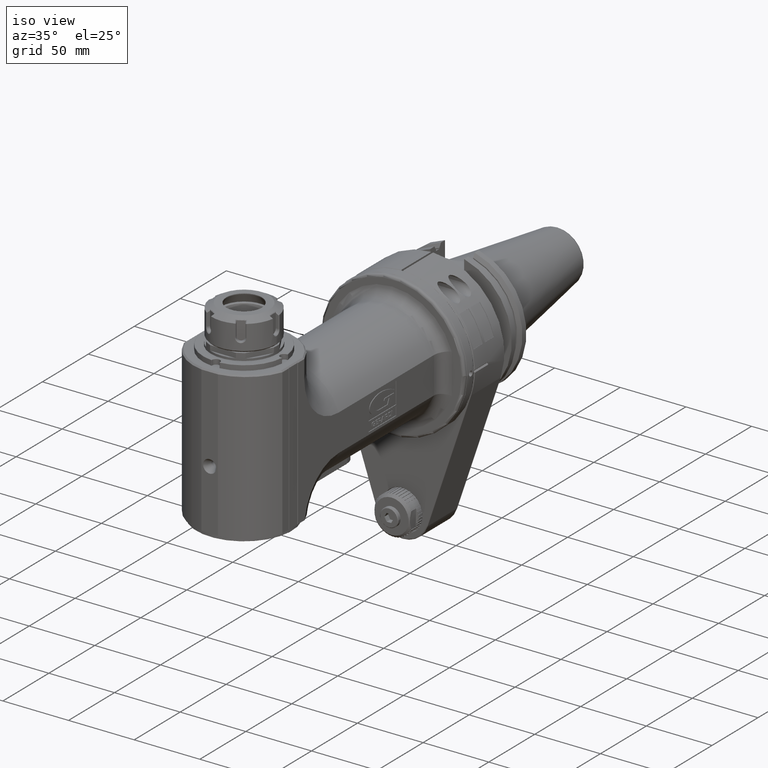
[diagram: clean part render]
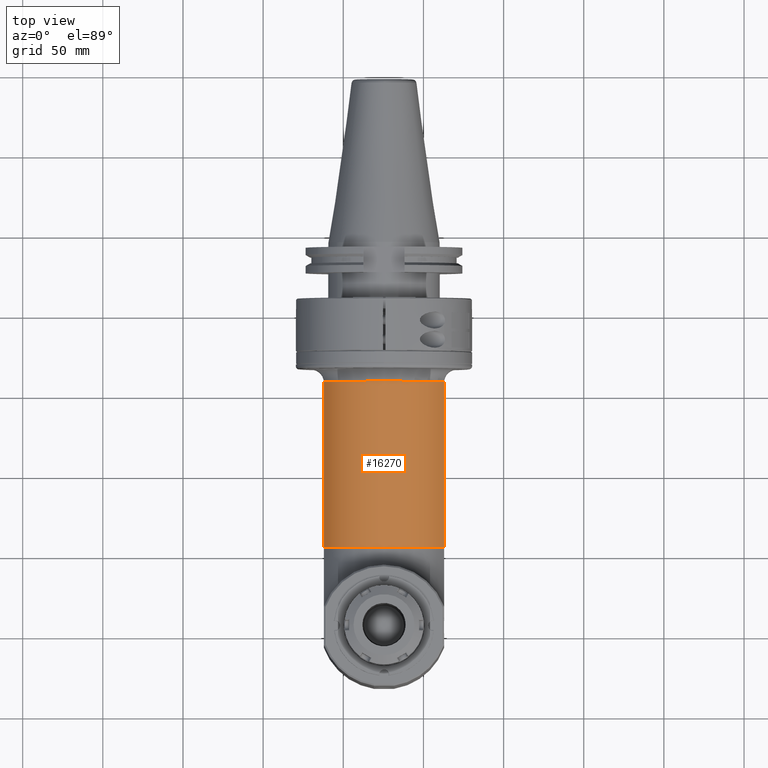
[diagram: tour spotlight — one face highlighted and labeled with its STEP entity id]
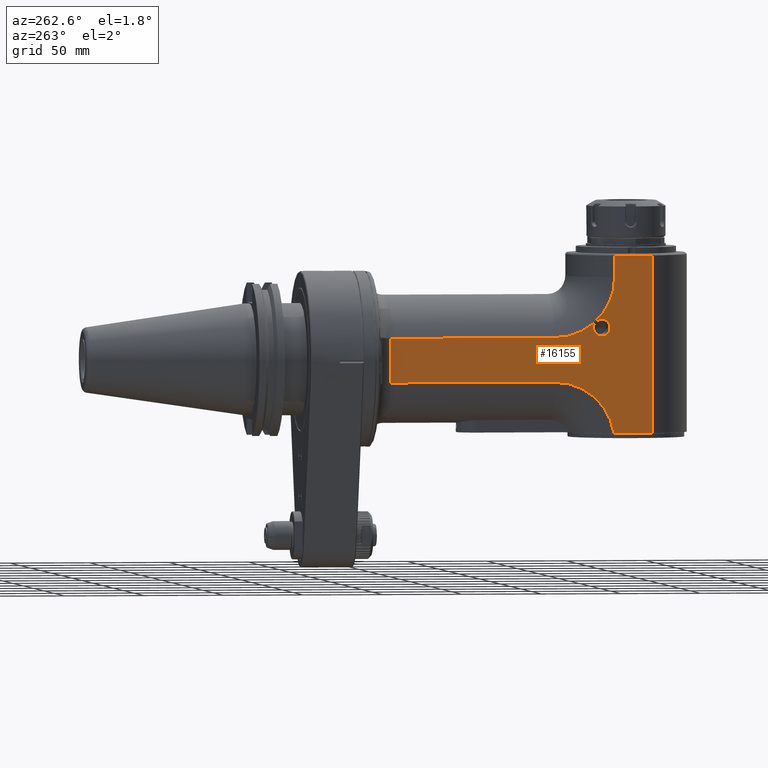
[diagram: tour spotlight — one face highlighted and labeled with its STEP entity id]
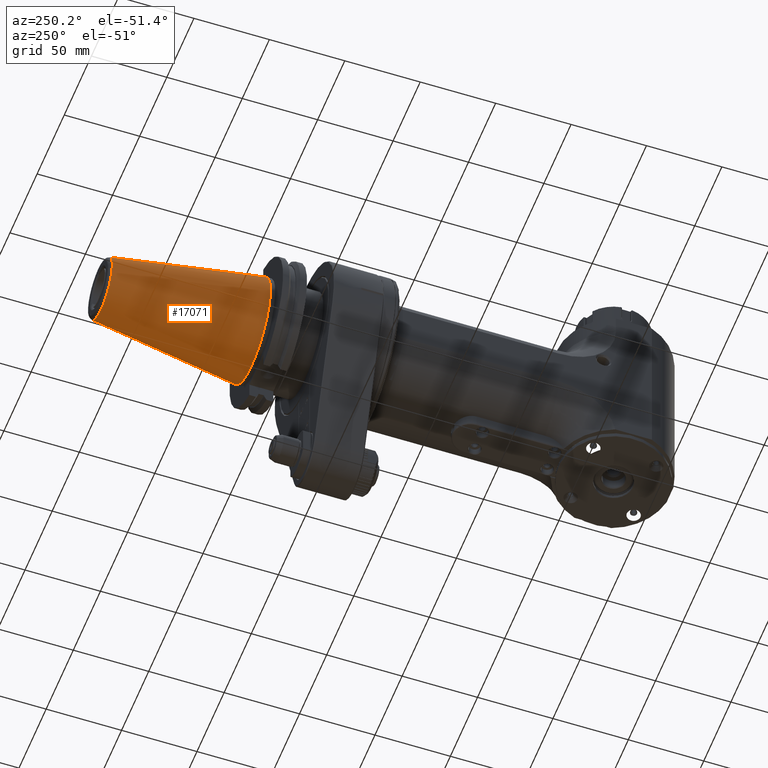
[diagram: tour spotlight — one face highlighted and labeled with its STEP entity id]
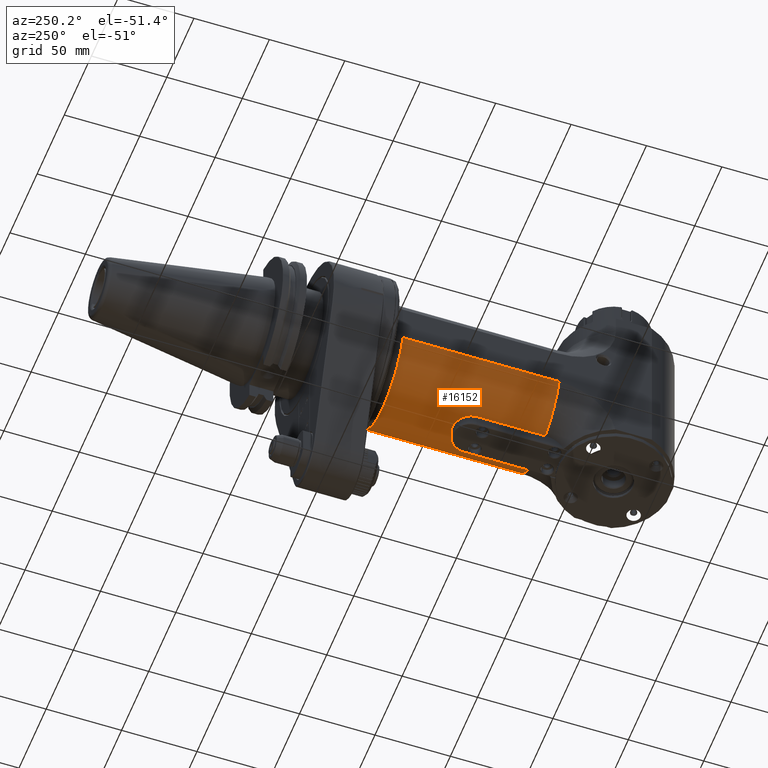
[diagram: tour spotlight — one face highlighted and labeled with its STEP entity id]
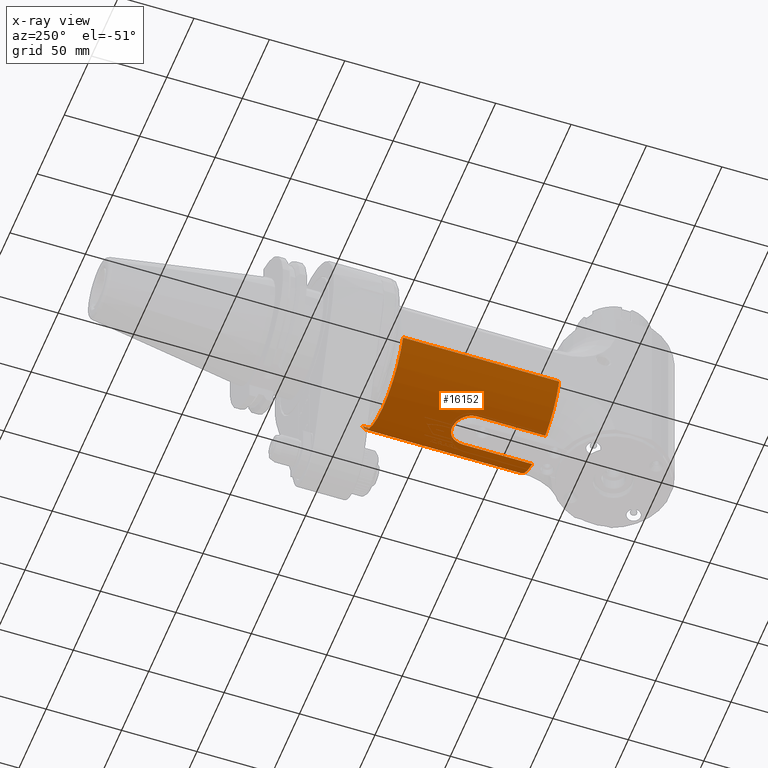
[diagram: x-ray of the same camera — body ghosted, this tour face saturated]
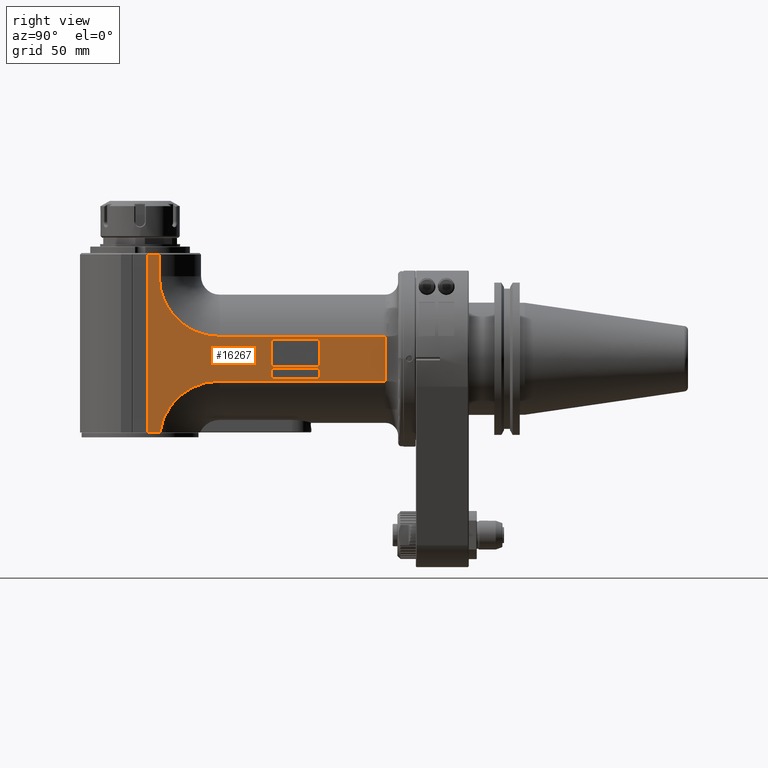
[diagram: tour spotlight — one face highlighted and labeled with its STEP entity id]
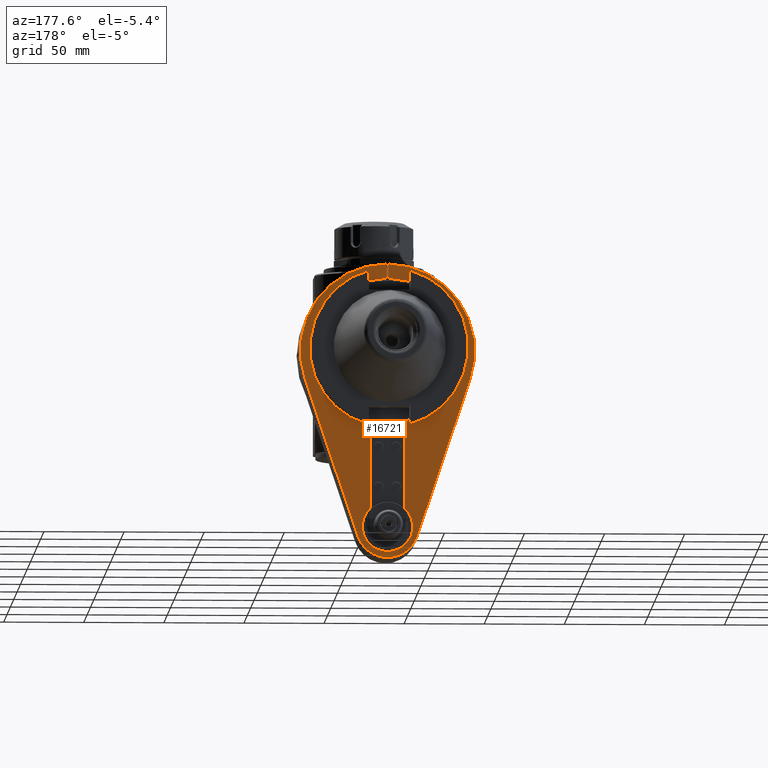
[diagram: tour spotlight — one face highlighted and labeled with its STEP entity id]
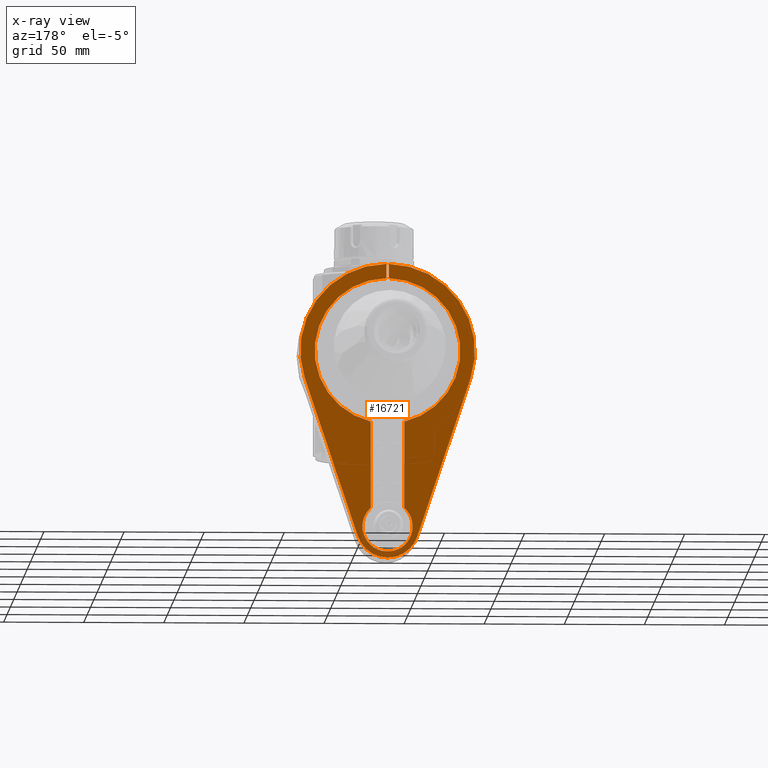
[diagram: x-ray of the same camera — body ghosted, this tour face saturated]
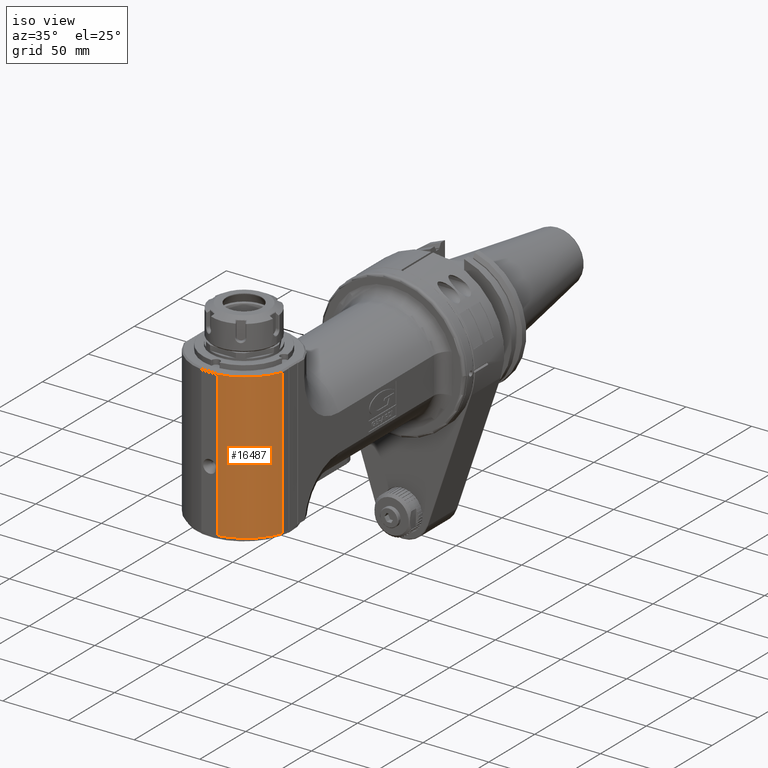
[diagram: tour spotlight — one face highlighted and labeled with its STEP entity id]
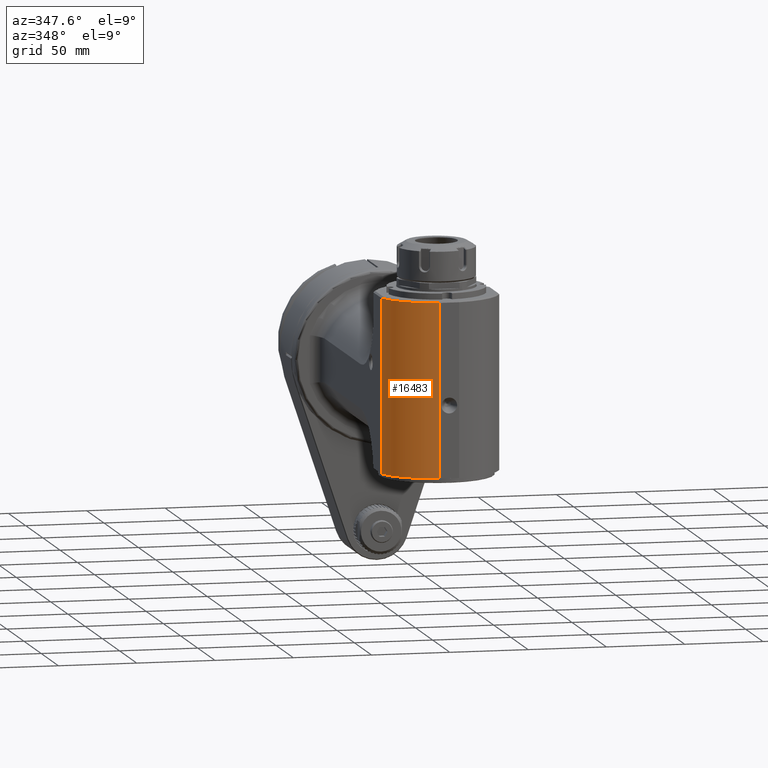
[diagram: tour spotlight — one face highlighted and labeled with its STEP entity id]
A machine part: a face-by-face anatomy tour. The part has 961 B-rep faces; the first image is the clean iso view, then the 8 largest visible faces are spotlighted one at a time (largest first), each with its STEP entity span.

Face 1 — top view, entity #16270. In plain terms, the highlighted cylindrical surface (partial cylindrical patch) has radius 40 mm, axis along (0, -1, -0).
Definition (entity closure, byte-faithful):
#1183=FACE_OUTER_BOUND('',#2171,.T.);
#2171=EDGE_LOOP('',(#11556,#11557,#11558,#11559));
#3452=CIRCLE('',#17441,40.);
#3453=CIRCLE('',#17443,40.);
#4067=LINE('',#23753,#5439);
#4197=LINE('',#24727,#5569);
#5439=VECTOR('',#18915,103.5);
#5569=VECTOR('',#19561,103.5);
#6817=VERTEX_POINT('',#23750);
#6818=VERTEX_POINT('',#23752);
#7023=VERTEX_POINT('',#24724);
#7024=VERTEX_POINT('',#24726);
#8456=EDGE_CURVE('',#6818,#6817,#4067,.T.);
#8758=EDGE_CURVE('',#7023,#7024,#4197,.T.);
#8770=EDGE_CURVE('',#7024,#6817,#3452,.T.);
#8771=EDGE_CURVE('',#7023,#6818,#3453,.T.);
#11556=ORIENTED_EDGE('',*,*,#8758,.F.);
#11557=ORIENTED_EDGE('',*,*,#8771,.T.);
#11558=ORIENTED_EDGE('',*,*,#8456,.T.);
#11559=ORIENTED_EDGE('',*,*,#8770,.F.);
#15981=CYLINDRICAL_SURFACE('',#17442,40.);
#16270=ADVANCED_FACE('',(#1183),#15981,.T.);
#17441=AXIS2_PLACEMENT_3D('',#24750,#19579,#19580);
#17442=AXIS2_PLACEMENT_3D('',#24751,#19581,#19582);
#17443=AXIS2_PLACEMENT_3D('',#24752,#19583,#19584);
#18915=DIRECTION('',(0.,-1.,0.));
#19561=DIRECTION('',(0.,-1.,0.));
#19579=DIRECTION('center_axis',(0.,-1.,0.));
#19580=DIRECTION('ref_axis',(0.937499999999992,0.,0.347985272676897));
#19581=DIRECTION('center_axis',(0.,-1.,0.));
#19582=DIRECTION('ref_axis',(-1.,0.,0.));
#19583=DIRECTION('center_axis',(0.,-1.,0.));
#19584=DIRECTION('ref_axis',(0.937499999999992,0.,0.347985272676897));
#23750=CARTESIAN_POINT('',(-37.5,49.5,13.91941090708));
#23752=CARTESIAN_POINT('',(-37.5,153.,13.91941090708));
#23753=CARTESIAN_POINT('',(-37.5,153.,13.91941090708));
#24724=CARTESIAN_POINT('',(37.5,153.,13.91941090708));
#24726=CARTESIAN_POINT('',(37.5,49.5,13.91941090708));
#24727=CARTESIAN_POINT('',(37.5,153.,13.91941090708));
#24750=CARTESIAN_POINT('Origin',(0.,49.5,0.));
#24751=CARTESIAN_POINT('Origin',(0.,206.85,0.));
#24752=CARTESIAN_POINT('Origin',(0.,153.,0.));

Face 2 — auxiliary view, entity #16155. In plain terms, the highlighted planar face has unit normal (1, 0, -0).
Definition (entity closure, byte-faithful):
#452=FACE_BOUND('',#2030,.T.);
#571=PLANE('',#17177);
#1068=FACE_OUTER_BOUND('',#2029,.T.);
#2029=EDGE_LOOP('',(#10961,#10962,#10963,#10964,#10965,#10966,#10967,#10968,
#10969));
#2030=EDGE_LOOP('',(#10970));
#3311=CIRCLE('',#17176,37.58058909292);
#3312=CIRCLE('',#17178,37.58058909292);
#3313=CIRCLE('',#17179,5.250060322121);
#4058=LINE('',#23690,#5430);
#4065=LINE('',#23747,#5437);
#4066=LINE('',#23749,#5438);
#4067=LINE('',#23753,#5439);
#4068=LINE('',#23754,#5440);
#4069=LINE('',#23756,#5441);
#4070=LINE('',#23757,#5442);
#5430=VECTOR('',#18890,103.5);
#5437=VECTOR('',#18911,10.);
#5438=VECTOR('',#18912,13.4999980109401);
#5439=VECTOR('',#18915,103.5);
#5440=VECTOR('',#18916,27.83882181415);
#5441=VECTOR('',#18917,24.24346873245);
#5442=VECTOR('',#18918,10.);
#6803=VERTEX_POINT('',#23687);
#6804=VERTEX_POINT('',#23689);
#6813=VERTEX_POINT('',#23728);
#6814=VERTEX_POINT('',#23745);
#6815=VERTEX_POINT('',#23746);
#6816=VERTEX_POINT('',#23748);
#6817=VERTEX_POINT('',#23750);
#6818=VERTEX_POINT('',#23752);
#6819=VERTEX_POINT('',#23755);
#6820=VERTEX_POINT('',#23758);
#8440=EDGE_CURVE('',#6804,#6803,#4058,.T.);
#8452=EDGE_CURVE('',#6803,#6813,#3311,.T.);
#8453=EDGE_CURVE('',#6814,#6815,#4065,.T.);
#8454=EDGE_CURVE('',#6816,#6814,#4066,.T.);
#8455=EDGE_CURVE('',#6817,#6816,#3312,.T.);
#8456=EDGE_CURVE('',#6818,#6817,#4067,.T.);
#8457=EDGE_CURVE('',#6804,#6818,#4068,.T.);
#8458=EDGE_CURVE('',#6813,#6819,#4069,.T.);
#8459=EDGE_CURVE('',#6815,#6819,#4070,.T.);
#8460=EDGE_CURVE('',#6820,#6820,#3313,.T.);
#10961=ORIENTED_EDGE('',*,*,#8453,.F.);
#10962=ORIENTED_EDGE('',*,*,#8454,.F.);
#10963=ORIENTED_EDGE('',*,*,#8455,.F.);
#10964=ORIENTED_EDGE('',*,*,#8456,.F.);
#10965=ORIENTED_EDGE('',*,*,#8457,.F.);
#10966=ORIENTED_EDGE('',*,*,#8440,.T.);
#10967=ORIENTED_EDGE('',*,*,#8452,.T.);
#10968=ORIENTED_EDGE('',*,*,#8458,.T.);
#10969=ORIENTED_EDGE('',*,*,#8459,.F.);
#10970=ORIENTED_EDGE('',*,*,#8460,.T.);
#16155=ADVANCED_FACE('',(#1068,#452),#571,.F.);
#17176=AXIS2_PLACEMENT_3D('',#23743,#18907,#18908);
#17177=AXIS2_PLACEMENT_3D('',#23744,#18909,#18910);
#17178=AXIS2_PLACEMENT_3D('',#23751,#18913,#18914);
#17179=AXIS2_PLACEMENT_3D('',#23759,#18919,#18920);
#18890=DIRECTION('',(0.,-1.,0.));
#18907=DIRECTION('center_axis',(1.,0.,0.));
#18908=DIRECTION('ref_axis',(0.,-1.210059133884E-14,1.));
#18909=DIRECTION('center_axis',(1.,0.,0.));
#18910=DIRECTION('ref_axis',(0.,1.,0.));
#18911=DIRECTION('',(0.,-1.,0.));
#18912=DIRECTION('',(1.22590523118099E-7,-4.54893183119996E-8,0.999999999999991));
#18913=DIRECTION('center_axis',(-1.,0.,0.));
#18914=DIRECTION('ref_axis',(0.,-2.609190007438E-14,-1.));
#18915=DIRECTION('',(0.,-1.,0.));
#18916=DIRECTION('',(0.,0.,1.));
#18917=DIRECTION('',(0.,-1.,0.));
#18918=DIRECTION('',(0.,0.,-1.));
#18919=DIRECTION('center_axis',(1.,0.,0.));
#18920=DIRECTION('ref_axis',(0.,1.,-1.353399184322E-14));
#23687=CARTESIAN_POINT('',(-37.5,49.5,-13.91941090708));
#23689=CARTESIAN_POINT('',(-37.5,153.,-13.91941090708));
#23690=CARTESIAN_POINT('',(-37.5,153.,-13.91941090708));
#23728=CARTESIAN_POINT('',(-37.5,12.32405782537,-46.));
#23743=CARTESIAN_POINT('Origin',(-37.5,49.5,-51.5));
#23744=CARTESIAN_POINT('Origin',(-37.5,-18.013,-67.1));
#23745=CARTESIAN_POINT('',(-37.5000031535924,11.9193903969521,64.9999925954276));
#23746=CARTESIAN_POINT('',(-37.5000115855401,-11.919346400708,64.9999768288556));
#23747=CARTESIAN_POINT('',(-37.5,-9.00649999999996,65.));
#23748=CARTESIAN_POINT('',(-37.5,11.91941090708,51.5));
#23749=CARTESIAN_POINT('',(-37.5,11.91941090708,51.5));
#23750=CARTESIAN_POINT('',(-37.5,49.5,13.91941090708));
#23751=CARTESIAN_POINT('Origin',(-37.5,49.5,51.5));
#23752=CARTESIAN_POINT('',(-37.5,153.,13.91941090708));
#23753=CARTESIAN_POINT('',(-37.5,153.,13.91941090708));
#23754=CARTESIAN_POINT('',(-37.5,153.,-13.91941090708));
#23755=CARTESIAN_POINT('',(-37.5,-11.91941090708,-46.));
#23756=CARTESIAN_POINT('',(-37.5,12.32405782537,-46.));
#23757=CARTESIAN_POINT('',(-37.5,-11.9194109070751,66.));
#23758=CARTESIAN_POINT('',(-37.4999999999983,20.,25.2500603221227));
#23759=CARTESIAN_POINT('Origin',(-37.5,20.,20.));

Face 3 — auxiliary view, entity #17071. In plain terms, the highlighted conical surface has half-angle 8.3 deg.
Definition (entity closure, byte-faithful):
#355=CONICAL_SURFACE('',#18798,27.65552420652,0.144862327915529);
#1984=FACE_OUTER_BOUND('',#3044,.T.);
#3044=EDGE_LOOP('',(#15742,#15743,#15744,#15745,#15746));
#4015=CIRCLE('',#18795,20.38604841304);
#4017=CIRCLE('',#18797,20.38604841304);
#4018=CIRCLE('',#18799,34.925);
#5378=LINE('',#32304,#6750);
#6750=VECTOR('',#23468,27.65552420652);
#8366=VERTEX_POINT('',#32296);
#8367=VERTEX_POINT('',#32297);
#8368=VERTEX_POINT('',#32302);
#10836=EDGE_CURVE('',#8366,#8367,#4015,.T.);
#10838=EDGE_CURVE('',#8367,#8366,#4017,.T.);
#10839=EDGE_CURVE('',#8368,#8368,#4018,.T.);
#10840=EDGE_CURVE('',#8368,#8367,#5378,.T.);
#15742=ORIENTED_EDGE('',*,*,#10839,.F.);
#15743=ORIENTED_EDGE('',*,*,#10840,.T.);
#15744=ORIENTED_EDGE('',*,*,#10838,.T.);
#15745=ORIENTED_EDGE('',*,*,#10836,.T.);
#15746=ORIENTED_EDGE('',*,*,#10840,.F.);
#17071=ADVANCED_FACE('',(#1984),#355,.T.);
#18795=AXIS2_PLACEMENT_3D('',#32298,#23458,#23459);
#18797=AXIS2_PLACEMENT_3D('',#32300,#23462,#23463);
#18798=AXIS2_PLACEMENT_3D('',#32301,#23464,#23465);
#18799=AXIS2_PLACEMENT_3D('',#32303,#23466,#23467);
#23458=DIRECTION('center_axis',(0.,-1.,0.));
#23459=DIRECTION('ref_axis',(0.00108059556212205,0.,0.999999416156445));
#23462=DIRECTION('center_axis',(0.,-1.,0.));
#23463=DIRECTION('ref_axis',(0.00108059556212205,0.,0.999999416156445));
#23464=DIRECTION('center_axis',(0.,-1.,0.));
#23465=DIRECTION('ref_axis',(0.,0.,1.));
#23466=DIRECTION('center_axis',(0.,-1.,0.));
#23467=DIRECTION('ref_axis',(0.,0.,-1.));
#23468=DIRECTION('',(-1.76785359492914E-17,0.989525789068969,0.144356201000973));
#32296=CARTESIAN_POINT('',(0.0220290734443338,167.6608905025,20.386036510777));
#32297=CARTESIAN_POINT('',(2.49657089362968E-15,167.660890502501,-20.3860484130436));
#32298=CARTESIAN_POINT('Origin',(0.,167.6608905025,-1.224644799147E-14));
#32300=CARTESIAN_POINT('Origin',(0.,167.6608905025,-1.224644799147E-14));
#32301=CARTESIAN_POINT('Origin',(0.,117.83044525125,-1.224644799147E-14));
#32302=CARTESIAN_POINT('',(0.,68.,-34.925));
#32303=CARTESIAN_POINT('Origin',(0.,68.,-1.224644799147E-14));
#32304=CARTESIAN_POINT('',(3.38682491982569E-15,117.83044525125,-27.65552420652));

Face 4 — auxiliary view, entity #16152. An x-ray twin of the same camera follows (body ghosted, this face saturated) — the face is partly hidden behind the body. In plain terms, the highlighted cylindrical surface (partial cylindrical patch) has radius 40 mm, axis along (0, -1, -0).
Definition (entity closure, byte-faithful):
#1065=FACE_OUTER_BOUND('',#2026,.T.);
#2026=EDGE_LOOP('',(#10943,#10944,#10945,#10946,#10947,#10948,#10949,#10950));
#3092=B_SPLINE_CURVE_WITH_KNOTS('',3,(#23699,#23700,#23701,#23702,#23703,
#23704,#23705,#23706,#23707,#23708,#23709,#23710,#23711,#23712,#23713,#23714,
#23715,#23716),.UNSPECIFIED.,.F.,.F.,(4,2,2,2,2,2,2,2,4),(-3.64051929255001,
-3.18538658776291,-2.73025388297581,-2.27525676462541,-1.820259646275,-1.3652625279246,
-0.9102654095742,-0.4551327047871,0.),.UNSPECIFIED.);
#3307=CIRCLE('',#17170,40.);
#3308=CIRCLE('',#17171,40.);
#3309=CIRCLE('',#17172,40.);
#4057=LINE('',#23686,#5429);
#4058=LINE('',#23690,#5430);
#4059=LINE('',#23694,#5431);
#4060=LINE('',#23698,#5432);
#5429=VECTOR('',#18887,45.5);
#5430=VECTOR('',#18890,103.5);
#5431=VECTOR('',#18893,103.5);
#5432=VECTOR('',#18896,45.5);
#6801=VERTEX_POINT('',#23684);
#6802=VERTEX_POINT('',#23685);
#6803=VERTEX_POINT('',#23687);
#6804=VERTEX_POINT('',#23689);
#6805=VERTEX_POINT('',#23691);
#6806=VERTEX_POINT('',#23693);
#6807=VERTEX_POINT('',#23695);
#6808=VERTEX_POINT('',#23697);
#8438=EDGE_CURVE('',#6801,#6802,#4057,.T.);
#8439=EDGE_CURVE('',#6803,#6802,#3307,.T.);
#8440=EDGE_CURVE('',#6804,#6803,#4058,.T.);
#8441=EDGE_CURVE('',#6804,#6805,#3308,.T.);
#8442=EDGE_CURVE('',#6805,#6806,#4059,.T.);
#8443=EDGE_CURVE('',#6807,#6806,#3309,.T.);
#8444=EDGE_CURVE('',#6808,#6807,#4060,.T.);
#8445=EDGE_CURVE('',#6808,#6801,#3092,.T.);
#10943=ORIENTED_EDGE('',*,*,#8438,.T.);
#10944=ORIENTED_EDGE('',*,*,#8439,.F.);
#10945=ORIENTED_EDGE('',*,*,#8440,.F.);
#10946=ORIENTED_EDGE('',*,*,#8441,.T.);
#10947=ORIENTED_EDGE('',*,*,#8442,.T.);
#10948=ORIENTED_EDGE('',*,*,#8443,.F.);
#10949=ORIENTED_EDGE('',*,*,#8444,.F.);
#10950=ORIENTED_EDGE('',*,*,#8445,.T.);
#15946=CYLINDRICAL_SURFACE('',#17169,40.);
#16152=ADVANCED_FACE('',(#1065),#15946,.T.);
#17169=AXIS2_PLACEMENT_3D('',#23683,#18885,#18886);
#17170=AXIS2_PLACEMENT_3D('',#23688,#18888,#18889);
#17171=AXIS2_PLACEMENT_3D('',#23692,#18891,#18892);
#17172=AXIS2_PLACEMENT_3D('',#23696,#18894,#18895);
#18885=DIRECTION('center_axis',(0.,-1.,0.));
#18886=DIRECTION('ref_axis',(-1.,0.,0.));
#18887=DIRECTION('',(0.,-1.,0.));
#18888=DIRECTION('center_axis',(0.,-1.,0.));
#18889=DIRECTION('ref_axis',(-0.937499999999992,0.,-0.347985272676897));
#18890=DIRECTION('',(0.,-1.,0.));
#18891=DIRECTION('center_axis',(0.,-1.,0.));
#18892=DIRECTION('ref_axis',(-0.937499999999992,0.,-0.347985272676897));
#18893=DIRECTION('',(0.,-1.,0.));
#18894=DIRECTION('center_axis',(0.,-1.,0.));
#18895=DIRECTION('ref_axis',(0.300000000000013,0.,-0.953939201416942));
#18896=DIRECTION('',(0.,-1.,0.));
#23683=CARTESIAN_POINT('Origin',(0.,206.85,0.));
#23684=CARTESIAN_POINT('',(-12.,95.,-38.15756805668));
#23685=CARTESIAN_POINT('',(-12.,49.5,-38.15756805668));
#23686=CARTESIAN_POINT('',(-12.,95.,-38.15756805668));
#23687=CARTESIAN_POINT('',(-37.5,49.5,-13.91941090708));
#23688=CARTESIAN_POINT('Origin',(0.,49.5,0.));
#23689=CARTESIAN_POINT('',(-37.5,153.,-13.91941090708));
#23690=CARTESIAN_POINT('',(-37.5,153.,-13.91941090708));
#23691=CARTESIAN_POINT('',(37.5,153.,-13.91941090708));
#23692=CARTESIAN_POINT('Origin',(0.,153.,0.));
#23693=CARTESIAN_POINT('',(37.5,49.5,-13.91941090708));
#23694=CARTESIAN_POINT('',(37.5,153.,-13.91941090708));
#23695=CARTESIAN_POINT('',(12.,49.5,-38.15756805668));
#23696=CARTESIAN_POINT('Origin',(0.,49.5,0.));
#23697=CARTESIAN_POINT('',(12.,95.,-38.15756805668));
#23698=CARTESIAN_POINT('',(12.,95.,-38.15756805668));
#23699=CARTESIAN_POINT('Ctrl Pts',(12.,95.,-38.1575680566778));
#23700=CARTESIAN_POINT('Ctrl Pts',(12.,96.517109015957,-38.1575680566778));
#23701=CARTESIAN_POINT('Ctrl Pts',(11.6948836643969,98.1284299417129,-38.2575175622995));
#23702=CARTESIAN_POINT('Ctrl Pts',(10.4674669046306,101.081902150865,-38.6113982441283));
#23703=CARTESIAN_POINT('Ctrl Pts',(9.5456212504585,102.424941498019,-38.8594700691606));
#23704=CARTESIAN_POINT('Ctrl Pts',(7.42525737886832,104.545305369609,-39.3197425045993));
#23705=CARTESIAN_POINT('Ctrl Pts',(6.08208967602489,105.467395628132,-39.5628477996032));
#23706=CARTESIAN_POINT('Ctrl Pts',(3.12815086992751,106.694992986043,-39.9052053355133));
#23707=CARTESIAN_POINT('Ctrl Pts',(1.51665706116801,107.,-40.));
#23708=CARTESIAN_POINT('Ctrl Pts',(-1.51665706116801,107.,-40.));
#23709=CARTESIAN_POINT('Ctrl Pts',(-3.12815086992754,106.694992986043,-39.9052053355133));
#23710=CARTESIAN_POINT('Ctrl Pts',(-6.08208967602491,105.467395628132,-39.5628477996032));
#23711=CARTESIAN_POINT('Ctrl Pts',(-7.42525737886832,104.545305369609,-39.3197425045993));
#23712=CARTESIAN_POINT('Ctrl Pts',(-9.5456212504585,102.424941498019,-38.8594700691606));
#23713=CARTESIAN_POINT('Ctrl Pts',(-10.4674669046306,101.081902150865,-38.6113982441283));
#23714=CARTESIAN_POINT('Ctrl Pts',(-11.6948836643969,98.1284299417129,-38.2575175622995));
#23715=CARTESIAN_POINT('Ctrl Pts',(-12.,96.517109015957,-38.1575680566778));
#23716=CARTESIAN_POINT('Ctrl Pts',(-12.,95.,-38.1575680566778));

Face 5 — right view, entity #16267. In plain terms, the highlighted planar face has unit normal (1, 0, -0).
Definition (entity closure, byte-faithful):
#477=FACE_BOUND('',#2167,.T.);
#478=FACE_BOUND('',#2168,.T.);
#603=PLANE('',#17436);
#1180=FACE_OUTER_BOUND('',#2166,.T.);
#2166=EDGE_LOOP('',(#11531,#11532,#11533,#11534,#11535,#11536,#11537,#11538,
#11539));
#2167=EDGE_LOOP('',(#11540,#11541,#11542,#11543));
#2168=EDGE_LOOP('',(#11544,#11545,#11546,#11547));
#3449=CIRCLE('',#17435,37.58058909292);
#3450=CIRCLE('',#17437,37.58058909292);
#4059=LINE('',#23694,#5431);
#4083=LINE('',#23822,#5455);
#4090=LINE('',#23843,#5462);
#4093=LINE('',#23868,#5465);
#4196=LINE('',#24725,#5568);
#4197=LINE('',#24727,#5569);
#4198=LINE('',#24730,#5570);
#4199=LINE('',#24733,#5571);
#4200=LINE('',#24735,#5572);
#4201=LINE('',#24737,#5573);
#4202=LINE('',#24738,#5574);
#4203=LINE('',#24741,#5575);
#4204=LINE('',#24743,#5576);
#4205=LINE('',#24745,#5577);
#4206=LINE('',#24746,#5578);
#5431=VECTOR('',#18893,103.5);
#5455=VECTOR('',#18965,10.);
#5462=VECTOR('',#18974,111.);
#5465=VECTOR('',#18983,7.324057825372);
#5568=VECTOR('',#19560,27.83882181415);
#5569=VECTOR('',#19561,103.5);
#5570=VECTOR('',#19564,13.4999981228601);
#5571=VECTOR('',#19565,16.51976851128);
#5572=VECTOR('',#19566,30.01663922375);
#5573=VECTOR('',#19567,16.51976851128);
#5574=VECTOR('',#19568,30.01663922375);
#5575=VECTOR('',#19569,6.349203301807);
#5576=VECTOR('',#19570,30.04358740776);
#5577=VECTOR('',#19571,6.349203301807);
#5578=VECTOR('',#19572,30.04358740776);
#6805=VERTEX_POINT('',#23691);
#6806=VERTEX_POINT('',#23693);
#6824=VERTEX_POINT('',#23773);
#6844=VERTEX_POINT('',#23819);
#6851=VERTEX_POINT('',#23840);
#6857=VERTEX_POINT('',#23853);
#7023=VERTEX_POINT('',#24724);
#7024=VERTEX_POINT('',#24726);
#7025=VERTEX_POINT('',#24728);
#7026=VERTEX_POINT('',#24731);
#7027=VERTEX_POINT('',#24732);
#7028=VERTEX_POINT('',#24734);
#7029=VERTEX_POINT('',#24736);
#7030=VERTEX_POINT('',#24739);
#7031=VERTEX_POINT('',#24740);
#7032=VERTEX_POINT('',#24742);
#7033=VERTEX_POINT('',#24744);
#8442=EDGE_CURVE('',#6805,#6806,#4059,.T.);
#8488=EDGE_CURVE('',#6844,#6824,#4083,.T.);
#8496=EDGE_CURVE('',#6851,#6844,#4090,.T.);
#8502=EDGE_CURVE('',#6857,#6851,#4093,.T.);
#8756=EDGE_CURVE('',#6806,#6857,#3449,.T.);
#8757=EDGE_CURVE('',#6805,#7023,#4196,.T.);
#8758=EDGE_CURVE('',#7023,#7024,#4197,.T.);
#8759=EDGE_CURVE('',#7024,#7025,#3450,.T.);
#8760=EDGE_CURVE('',#7025,#6824,#4198,.T.);
#8761=EDGE_CURVE('',#7026,#7027,#4199,.T.);
#8762=EDGE_CURVE('',#7028,#7026,#4200,.T.);
#8763=EDGE_CURVE('',#7029,#7028,#4201,.T.);
#8764=EDGE_CURVE('',#7027,#7029,#4202,.T.);
#8765=EDGE_CURVE('',#7030,#7031,#4203,.T.);
#8766=EDGE_CURVE('',#7032,#7030,#4204,.T.);
#8767=EDGE_CURVE('',#7033,#7032,#4205,.T.);
#8768=EDGE_CURVE('',#7031,#7033,#4206,.T.);
#11531=ORIENTED_EDGE('',*,*,#8496,.F.);
#11532=ORIENTED_EDGE('',*,*,#8502,.F.);
#11533=ORIENTED_EDGE('',*,*,#8756,.F.);
#11534=ORIENTED_EDGE('',*,*,#8442,.F.);
#11535=ORIENTED_EDGE('',*,*,#8757,.T.);
#11536=ORIENTED_EDGE('',*,*,#8758,.T.);
#11537=ORIENTED_EDGE('',*,*,#8759,.T.);
#11538=ORIENTED_EDGE('',*,*,#8760,.T.);
#11539=ORIENTED_EDGE('',*,*,#8488,.F.);
#11540=ORIENTED_EDGE('',*,*,#8761,.F.);
#11541=ORIENTED_EDGE('',*,*,#8762,.F.);
#11542=ORIENTED_EDGE('',*,*,#8763,.F.);
#11543=ORIENTED_EDGE('',*,*,#8764,.F.);
#11544=ORIENTED_EDGE('',*,*,#8765,.F.);
#11545=ORIENTED_EDGE('',*,*,#8766,.F.);
#11546=ORIENTED_EDGE('',*,*,#8767,.F.);
#11547=ORIENTED_EDGE('',*,*,#8768,.F.);
#16267=ADVANCED_FACE('',(#1180,#477,#478),#603,.T.);
#17435=AXIS2_PLACEMENT_3D('',#24722,#19556,#19557);
#17436=AXIS2_PLACEMENT_3D('',#24723,#19558,#19559);
#17437=AXIS2_PLACEMENT_3D('',#24729,#19562,#19563);
#18893=DIRECTION('',(0.,-1.,0.));
#18965=DIRECTION('',(0.,1.,0.));
#18974=DIRECTION('',(0.,0.,1.));
#18983=DIRECTION('',(0.,-1.,0.));
#19556=DIRECTION('center_axis',(1.,0.,0.));
#19557=DIRECTION('ref_axis',(0.,-1.210059133884E-14,1.));
#19558=DIRECTION('center_axis',(1.,0.,0.));
#19559=DIRECTION('ref_axis',(0.,1.,0.));
#19560=DIRECTION('',(0.,0.,1.));
#19561=DIRECTION('',(0.,-1.,0.));
#19562=DIRECTION('center_axis',(-1.,0.,0.));
#19563=DIRECTION('ref_axis',(0.,0.,-1.));
#19564=DIRECTION('',(-1.30358121104699E-7,-4.83867656897595E-8,0.99999999999999));
#19565=DIRECTION('',(0.,0.,-1.));
#19566=DIRECTION('',(0.,-1.,0.));
#19567=DIRECTION('',(0.,0.,1.));
#19568=DIRECTION('',(0.,1.,0.));
#19569=DIRECTION('',(0.,0.,-1.));
#19570=DIRECTION('',(0.,-1.,0.));
#19571=DIRECTION('',(0.,0.,1.));
#19572=DIRECTION('',(0.,1.,0.));
#23691=CARTESIAN_POINT('',(37.5,153.,-13.91941090708));
#23693=CARTESIAN_POINT('',(37.5,49.5,-13.91941090708));
#23694=CARTESIAN_POINT('',(37.5,153.,-13.91941090708));
#23773=CARTESIAN_POINT('',(37.5000031227525,11.9193903815777,64.9999926020201));
#23819=CARTESIAN_POINT('',(37.5,5.,65.));
#23822=CARTESIAN_POINT('',(37.5,-9.0065,65.));
#23840=CARTESIAN_POINT('',(37.5,5.,-46.));
#23843=CARTESIAN_POINT('',(37.5,5.,-46.));
#23853=CARTESIAN_POINT('',(37.5,12.32405782537,-46.));
#23868=CARTESIAN_POINT('',(37.5,12.32405782537,-46.));
#24722=CARTESIAN_POINT('Origin',(37.5,49.5,-51.5));
#24723=CARTESIAN_POINT('Origin',(37.5,-18.013,-67.1));
#24724=CARTESIAN_POINT('',(37.5,153.,13.91941090708));
#24725=CARTESIAN_POINT('',(37.5,153.,-13.91941090708));
#24726=CARTESIAN_POINT('',(37.5,49.5,13.91941090708));
#24727=CARTESIAN_POINT('',(37.5,153.,13.91941090708));
#24728=CARTESIAN_POINT('',(37.5,11.91941090708,51.5));
#24729=CARTESIAN_POINT('Origin',(37.5,49.5,51.5));
#24730=CARTESIAN_POINT('',(37.5,11.91941090708,51.5));
#24731=CARTESIAN_POINT('',(37.5,81.98336077625,11.90006998381));
#24732=CARTESIAN_POINT('',(37.5,81.98336077625,-4.619698527469));
#24733=CARTESIAN_POINT('',(37.5,81.98336077625,11.90006998381));
#24734=CARTESIAN_POINT('',(37.5,112.,11.90006998381));
#24735=CARTESIAN_POINT('',(37.5,112.,11.90006998381));
#24736=CARTESIAN_POINT('',(37.5,112.,-4.619698527469));
#24737=CARTESIAN_POINT('',(37.5,112.,-4.619698527469));
#24738=CARTESIAN_POINT('',(37.5,81.98336077625,-4.619698527469));
#24739=CARTESIAN_POINT('',(37.5,81.94167288687,-5.750796698193));
#24740=CARTESIAN_POINT('',(37.5,81.94167288687,-12.1));
#24741=CARTESIAN_POINT('',(37.5,81.94167288687,-5.750796698193));
#24742=CARTESIAN_POINT('',(37.5,111.9852602946,-5.750796698193));
#24743=CARTESIAN_POINT('',(37.5,111.9852602946,-5.750796698193));
#24744=CARTESIAN_POINT('',(37.5,111.9852602946,-12.1));
#24745=CARTESIAN_POINT('',(37.5,111.9852602946,-12.1));
#24746=CARTESIAN_POINT('',(37.5,81.94167288687,-12.1));

Face 6 — auxiliary view, entity #16721. An x-ray twin of the same camera follows (body ghosted, this face saturated) — the face is partly hidden behind the body. In plain terms, the highlighted planar face has unit normal (0, 1, 0).
Definition (entity closure, byte-faithful):
#817=PLANE('',#18304);
#1634=FACE_OUTER_BOUND('',#2662,.T.);
#2662=EDGE_LOOP('',(#14164,#14165,#14166,#14167,#14168,#14169,#14170,#14171,
#14172,#14173,#14174,#14175));
#3832=CIRCLE('',#18213,45.4999524655);
#3838=CIRCLE('',#18222,45.49995209423);
#3882=CIRCLE('',#18302,15.74996834868);
#3883=CIRCLE('',#18305,54.49972518313);
#3884=CIRCLE('',#18306,19.4996374736265);
#3885=CIRCLE('',#18307,54.49972814815);
#4871=LINE('',#29926,#6243);
#4878=LINE('',#29984,#6250);
#4939=LINE('',#30500,#6311);
#4940=LINE('',#30505,#6312);
#4941=LINE('',#30509,#6313);
#4942=LINE('',#30511,#6314);
#6243=VECTOR('',#21779,10.);
#6250=VECTOR('',#21816,10.);
#6311=VECTOR('',#22037,10.);
#6312=VECTOR('',#22042,10.);
#6313=VECTOR('',#22045,10.);
#6314=VECTOR('',#22048,10.);
#7969=VERTEX_POINT('',#29905);
#7975=VERTEX_POINT('',#29922);
#7979=VERTEX_POINT('',#29934);
#7991=VERTEX_POINT('',#29967);
#7992=VERTEX_POINT('',#29971);
#7995=VERTEX_POINT('',#29983);
#8072=VERTEX_POINT('',#30490);
#8073=VERTEX_POINT('',#30494);
#8074=VERTEX_POINT('',#30502);
#8075=VERTEX_POINT('',#30504);
#8076=VERTEX_POINT('',#30506);
#8077=VERTEX_POINT('',#30508);
#10080=EDGE_CURVE('',#7969,#7975,#4871,.T.);
#10084=EDGE_CURVE('',#7969,#7979,#3832,.T.);
#10099=EDGE_CURVE('',#7991,#7992,#3838,.T.);
#10103=EDGE_CURVE('',#7992,#7995,#4878,.T.);
#10226=EDGE_CURVE('',#8072,#8073,#3882,.T.);
#10228=EDGE_CURVE('',#8073,#7991,#4939,.T.);
#10229=EDGE_CURVE('',#8074,#7975,#3883,.T.);
#10230=EDGE_CURVE('',#8075,#8074,#4940,.T.);
#10231=EDGE_CURVE('',#8076,#8075,#3884,.T.);
#10232=EDGE_CURVE('',#8077,#8076,#4941,.T.);
#10233=EDGE_CURVE('',#7995,#8077,#3885,.T.);
#10234=EDGE_CURVE('',#7979,#8072,#4942,.T.);
#14164=ORIENTED_EDGE('',*,*,#10084,.F.);
#14165=ORIENTED_EDGE('',*,*,#10080,.T.);
#14166=ORIENTED_EDGE('',*,*,#10229,.F.);
#14167=ORIENTED_EDGE('',*,*,#10230,.F.);
#14168=ORIENTED_EDGE('',*,*,#10231,.F.);
#14169=ORIENTED_EDGE('',*,*,#10232,.F.);
#14170=ORIENTED_EDGE('',*,*,#10233,.F.);
#14171=ORIENTED_EDGE('',*,*,#10103,.F.);
#14172=ORIENTED_EDGE('',*,*,#10099,.F.);
#14173=ORIENTED_EDGE('',*,*,#10228,.F.);
#14174=ORIENTED_EDGE('',*,*,#10226,.F.);
#14175=ORIENTED_EDGE('',*,*,#10234,.F.);
#16721=ADVANCED_FACE('',(#1634),#817,.T.);
#18213=AXIS2_PLACEMENT_3D('',#29935,#21788,#21789);
#18222=AXIS2_PLACEMENT_3D('',#29972,#21811,#21812);
#18302=AXIS2_PLACEMENT_3D('',#30495,#22033,#22034);
#18304=AXIS2_PLACEMENT_3D('',#30501,#22038,#22039);
#18305=AXIS2_PLACEMENT_3D('',#30503,#22040,#22041);
#18306=AXIS2_PLACEMENT_3D('',#30507,#22043,#22044);
#18307=AXIS2_PLACEMENT_3D('',#30510,#22046,#22047);
#21779=DIRECTION('',(0.,0.,1.));
#21788=DIRECTION('center_axis',(0.,1.,0.));
#21789=DIRECTION('ref_axis',(0.0164835253536207,0.,0.999864137466644));
#21811=DIRECTION('center_axis',(0.,1.,0.));
#21812=DIRECTION('ref_axis',(-0.230769415947297,0.,-0.973008466902186));
#21816=DIRECTION('',(0.,0.,1.));
#22033=DIRECTION('center_axis',(0.,1.,0.));
#22034=DIRECTION('ref_axis',(0.666667726091604,0.,0.745355044920104));
#22037=DIRECTION('',(0.,0.,1.));
#22038=DIRECTION('center_axis',(0.,1.,0.));
#22039=DIRECTION('ref_axis',(1.,0.,0.));
#22040=DIRECTION('center_axis',(0.,-1.,0.));
#22041=DIRECTION('ref_axis',(0.948029709343358,0.,-0.318181819408886));
#22042=DIRECTION('',(0.318181818181786,0.,0.948029709755202));
#22043=DIRECTION('center_axis',(0.,-1.,0.));
#22044=DIRECTION('ref_axis',(0.,0.,1.));
#22045=DIRECTION('',(0.318181818181786,0.,-0.948029709755202));
#22046=DIRECTION('center_axis',(0.,-1.,0.));
#22047=DIRECTION('ref_axis',(-0.0137615296784906,0.,0.999905305666946));
#22048=DIRECTION('',(0.,0.,-1.));
#29905=CARTESIAN_POINT('',(0.750000000016709,32.9999999997022,45.4937707197119));
#29922=CARTESIAN_POINT('',(0.749999999986431,32.9999999997135,54.4945643629993));
#29926=CARTESIAN_POINT('',(0.75,33.,20.));
#29934=CARTESIAN_POINT('',(10.4999999997369,32.9999999998001,-44.2718383887745));
#29935=CARTESIAN_POINT('Origin',(2.708944280085E-13,33.,6.670220031948E-13));
#29967=CARTESIAN_POINT('',(-10.4999999993983,32.9999999997048,-44.2718380072539));
#29971=CARTESIAN_POINT('',(-0.750000000016583,32.9999999997044,45.4937703483959));
#29972=CARTESIAN_POINT('Origin',(2.84217194304E-14,33.,-3.422817484919E-13));
#29983=CARTESIAN_POINT('',(-0.749999999976397,32.9999999994991,54.4945673288148));
#29984=CARTESIAN_POINT('',(-0.75,33.,31.847));
#30490=CARTESIAN_POINT('',(10.4999999996612,32.9999999999993,-98.260685582108));
#30494=CARTESIAN_POINT('',(-10.4999999996845,33.0000000000001,-98.2606855821566));
#30495=CARTESIAN_POINT('Origin',(-1.105782032527E-13,33.,-110.));
#30500=CARTESIAN_POINT('',(-10.5,33.,-35.590310749325));
#30501=CARTESIAN_POINT('Origin',(0.,33.,0.));
#30502=CARTESIAN_POINT('',(51.6674885485661,33.0000002243783,-17.3408653185634));
#30503=CARTESIAN_POINT('Origin',(-3.508304657815E-13,33.,1.389999326831E-13));
#30504=CARTESIAN_POINT('',(18.4867177402054,33.000014271558,-116.203563367037));
#30505=CARTESIAN_POINT('',(43.3723592212982,33.,-42.0568181818154));
#30506=CARTESIAN_POINT('',(-18.4867041768075,32.9999986391672,-116.203610700462));
#30507=CARTESIAN_POINT('Origin',(8.704149513061E-14,33.,-110.));
#30508=CARTESIAN_POINT('',(-51.6674903058811,33.,-17.3408658833447));
#30509=CARTESIAN_POINT('',(-43.3723592212982,33.,-42.0568181818154));
#30510=CARTESIAN_POINT('Origin',(6.750156989721E-14,33.,-3.099742584753E-13));
#30511=CARTESIAN_POINT('',(10.5,33.,-35.590310749325));

Face 7 — iso view, entity #16487. In plain terms, the highlighted cylindrical surface (partial cylindrical patch) has radius 40 mm, axis along (-0, 0, -1).
Definition (entity closure, byte-faithful):
#1400=FACE_OUTER_BOUND('',#2411,.T.);
#2411=EDGE_LOOP('',(#12666,#12667,#12668,#12669));
#3328=CIRCLE('',#17200,40.);
#3555=CIRCLE('',#17768,40.);
#4538=LINE('',#26644,#5910);
#4539=LINE('',#26645,#5911);
#5910=VECTOR('',#20568,10.);
#5911=VECTOR('',#20569,10.);
#6846=VERTEX_POINT('',#23823);
#6862=VERTEX_POINT('',#23877);
#6863=VERTEX_POINT('',#23879);
#7388=VERTEX_POINT('',#26633);
#8508=EDGE_CURVE('',#6863,#6862,#3328,.T.);
#9315=EDGE_CURVE('',#6846,#7388,#3555,.T.);
#9316=EDGE_CURVE('',#7388,#6863,#4538,.T.);
#9317=EDGE_CURVE('',#6846,#6862,#4539,.T.);
#12666=ORIENTED_EDGE('',*,*,#9315,.T.);
#12667=ORIENTED_EDGE('',*,*,#9316,.T.);
#12668=ORIENTED_EDGE('',*,*,#8508,.T.);
#12669=ORIENTED_EDGE('',*,*,#9317,.F.);
#16015=CYLINDRICAL_SURFACE('',#17769,40.);
#16487=ADVANCED_FACE('',(#1400),#16015,.T.);
#17200=AXIS2_PLACEMENT_3D('',#23880,#18989,#18990);
#17768=AXIS2_PLACEMENT_3D('',#26642,#20564,#20565);
#17769=AXIS2_PLACEMENT_3D('',#26643,#20566,#20567);
#18989=DIRECTION('center_axis',(0.,0.,1.));
#18990=DIRECTION('ref_axis',(0.1576190026615,-0.987499999999997,0.));
#20564=DIRECTION('center_axis',(0.,0.,-1.));
#20565=DIRECTION('ref_axis',(0.937499999999992,-0.347985272676897,0.));
#20566=DIRECTION('center_axis',(0.,0.,-1.));
#20567=DIRECTION('ref_axis',(-1.,0.,0.));
#20568=DIRECTION('',(0.,0.,-1.));
#20569=DIRECTION('',(0.,0.,-1.));
#23823=CARTESIAN_POINT('',(37.4999928846129,-11.919401207414,64.9999776133729));
#23877=CARTESIAN_POINT('',(37.5,-11.91941090708,-46.));
#23879=CARTESIAN_POINT('',(6.304760106459,-37.5,-46.));
#23880=CARTESIAN_POINT('Origin',(0.,2.,-46.));
#26633=CARTESIAN_POINT('',(6.30476010498658,-37.4999901119275,64.9999746119677));
#26642=CARTESIAN_POINT('Origin',(3.907985146681E-13,1.999999999999,64.99992422193));
#26643=CARTESIAN_POINT('Origin',(0.,2.,66.));
#26644=CARTESIAN_POINT('',(6.30476010645924,-37.5,66.));
#26645=CARTESIAN_POINT('',(37.5,-11.9194109070751,66.));

Face 8 — auxiliary view, entity #16483. In plain terms, the highlighted cylindrical surface (partial cylindrical patch) has radius 40 mm, axis along (-0, 0, -1).
Definition (entity closure, byte-faithful):
#1396=FACE_OUTER_BOUND('',#2407,.T.);
#2407=EDGE_LOOP('',(#12650,#12651,#12652,#12653));
#3329=CIRCLE('',#17201,40.);
#3554=CIRCLE('',#17764,39.99999999999);
#4070=LINE('',#23757,#5442);
#4536=LINE('',#26624,#5908);
#5442=VECTOR('',#18918,10.);
#5908=VECTOR('',#20556,110.9999904884);
#6815=VERTEX_POINT('',#23746);
#6819=VERTEX_POINT('',#23755);
#6864=VERTEX_POINT('',#23881);
#7387=VERTEX_POINT('',#26622);
#8459=EDGE_CURVE('',#6815,#6819,#4070,.T.);
#8510=EDGE_CURVE('',#6819,#6864,#3329,.T.);
#9310=EDGE_CURVE('',#7387,#6815,#3554,.T.);
#9311=EDGE_CURVE('',#7387,#6864,#4536,.T.);
#12650=ORIENTED_EDGE('',*,*,#9310,.T.);
#12651=ORIENTED_EDGE('',*,*,#8459,.T.);
#12652=ORIENTED_EDGE('',*,*,#8510,.T.);
#12653=ORIENTED_EDGE('',*,*,#9311,.F.);
#16014=CYLINDRICAL_SURFACE('',#17763,40.);
#16483=ADVANCED_FACE('',(#1396),#16014,.T.);
#17201=AXIS2_PLACEMENT_3D('',#23883,#18992,#18993);
#17763=AXIS2_PLACEMENT_3D('',#26621,#20552,#20553);
#17764=AXIS2_PLACEMENT_3D('',#26623,#20554,#20555);
#18918=DIRECTION('',(0.,0.,-1.));
#18992=DIRECTION('center_axis',(0.,0.,1.));
#18993=DIRECTION('ref_axis',(-0.937499999999992,-0.347985272676897,0.));
#20552=DIRECTION('center_axis',(0.,0.,-1.));
#20553=DIRECTION('ref_axis',(-1.,0.,0.));
#20554=DIRECTION('center_axis',(0.,0.,-1.));
#20555=DIRECTION('ref_axis',(-0.157619002661402,-0.987500000000013,0.));
#20556=DIRECTION('',(-2.945114442927E-9,-1.845153556752E-8,-1.));
#23746=CARTESIAN_POINT('',(-37.5000115855401,-11.919346400708,64.9999768288556));
#23755=CARTESIAN_POINT('',(-37.5,-11.91941090708,-46.));
#23757=CARTESIAN_POINT('',(-37.5,-11.9194109070751,66.));
#23881=CARTESIAN_POINT('',(-6.304760106459,-37.5,-46.));
#23883=CARTESIAN_POINT('Origin',(0.,2.,-46.));
#26621=CARTESIAN_POINT('Origin',(0.,2.,66.));
#26622=CARTESIAN_POINT('',(-6.3047512052677,-37.5000004875664,64.9999773518838));
#26623=CARTESIAN_POINT('Origin',(-5.217160027319E-12,1.999999999997,64.99995365745));
#26624=CARTESIAN_POINT('',(-6.304759779552,-37.49999795188,64.99999048841));